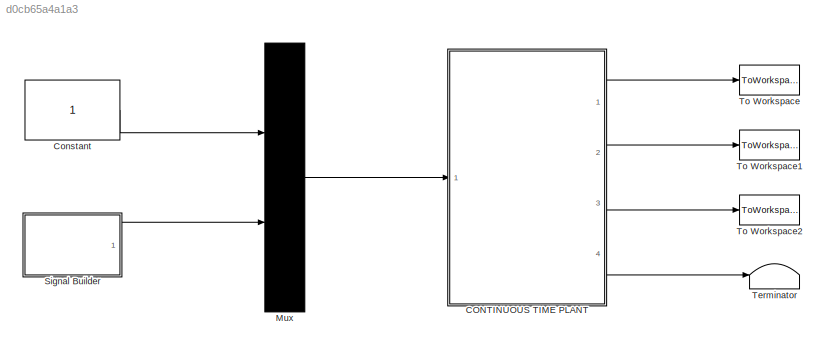
MODEL slx_d0cb65a4a1a3
KIND model
CONFIG AbsTol = auto
CONFIG EnableMultiTasking = off
CONFIG FixedStep = auto
CONFIG MaxStep = MaxStep
CONFIG MinStep = auto
CONFIG RelTol = RelTol
CONFIG SampleTimeConstraint = Unconstrained
CONFIG Solver = VariableStepAuto
CONFIG SolverName = VariableStepAuto
CONFIG StartTime = 0.0
CONFIG StopTime = T
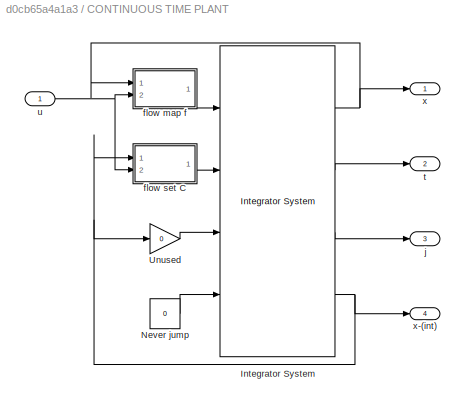
BLOCK [SubSystem] CONTINUOUS TIME PLANT
  CopyFcn = set_param(gcb,'LinkStatus','none'),                                      \nset_param(gcs, 'MaxStep', 'MaxStep', 'RelTol', 'RelTol','StopTime', 'T')
  LoadFcn = set_param(gcb,'LinkStatus','none')
  Ports = [1, 4]
  RequestExecContextInheritance = off
BLOCK [Reference] CONTINUOUS TIME PLANT/Integrator System  REF=HyEQ_Library/Other/Integrator System
  Ports = [4, 4]
  Priority = 2
  SourceBlock = HyEQ_Library/Other/Integrator System
  SourceProductName = Hybrid Equations Toolbox
  SourceType = Hybrid Integrator
BLOCK [Constant] CONTINUOUS TIME PLANT/Never jump
  Value = 0
BLOCK [Gain] CONTINUOUS TIME PLANT/Unused
  Gain = 0
  OutDataTypeStr = Inherit: Inherit via internal rule
  ParamDataTypeStr = Inherit: Inherit via internal rule
  SaturateOnIntegerOverflow = off
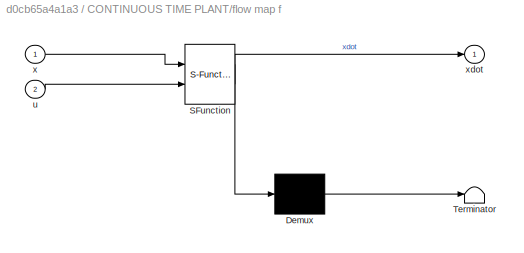
BLOCK [SubSystem] CONTINUOUS TIME PLANT/flow map f
  ErrorFcn = Stateflow.Translate.translate
  PermitHierarchicalResolution = ExplicitOnly
  Ports = [2, 1]
  RequestExecContextInheritance = off
  SFBlockType = MATLAB Function
  TreatAsAtomicUnit = on
BLOCK [Demux] CONTINUOUS TIME PLANT/flow map f/ Demux 
  Outputs = 1
  Ports = [1, 1]
BLOCK [S-Function] CONTINUOUS TIME PLANT/flow map f/ SFunction 
  EnableBusSupport = on
  FunctionName = sf_sfun
  PortCounts = [2 2]
  Ports = [2, 2]
  SFcnIsStateOwnerBlock = off
  SFunctionDeploymentMode = off
  Tag = Stateflow S-Function ContinuousTimeGroundVehicle 21
BLOCK [Terminator] CONTINUOUS TIME PLANT/flow map f/ Terminator 
BLOCK [Inport] CONTINUOUS TIME PLANT/flow map f/u
  IconDisplay = Port number
  Port = 2
BLOCK [Inport] CONTINUOUS TIME PLANT/flow map f/x
  IconDisplay = Port number
BLOCK [Outport] CONTINUOUS TIME PLANT/flow map f/xdot
  IconDisplay = Port number
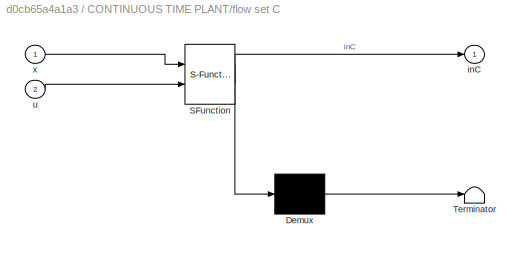
BLOCK [SubSystem] CONTINUOUS TIME PLANT/flow set C
  ErrorFcn = Stateflow.Translate.translate
  PermitHierarchicalResolution = ExplicitOnly
  Ports = [2, 1]
  RequestExecContextInheritance = off
  SFBlockType = MATLAB Function
  TreatAsAtomicUnit = on
BLOCK [Demux] CONTINUOUS TIME PLANT/flow set C/ Demux 
  Outputs = 1
  Ports = [1, 1]
BLOCK [S-Function] CONTINUOUS TIME PLANT/flow set C/ SFunction 
  EnableBusSupport = on
  FunctionName = sf_sfun
  PortCounts = [2 2]
  Ports = [2, 2]
  SFcnIsStateOwnerBlock = off
  SFunctionDeploymentMode = off
  Tag = Stateflow S-Function ContinuousTimeGroundVehicle 22
BLOCK [Terminator] CONTINUOUS TIME PLANT/flow set C/ Terminator 
BLOCK [Outport] CONTINUOUS TIME PLANT/flow set C/inC
  IconDisplay = Port number
BLOCK [Inport] CONTINUOUS TIME PLANT/flow set C/u
  IconDisplay = Port number
  Port = 2
BLOCK [Inport] CONTINUOUS TIME PLANT/flow set C/x
  IconDisplay = Port number
BLOCK [Outport] CONTINUOUS TIME PLANT/j
  IconDisplay = Port number
  Port = 3
  PortDimensions = 1
BLOCK [Outport] CONTINUOUS TIME PLANT/t
  IconDisplay = Port number
  Port = 2
  PortDimensions = 1
BLOCK [Inport] CONTINUOUS TIME PLANT/u
  IconDisplay = Port number
  PortDimensions = input_dim
BLOCK [Outport] CONTINUOUS TIME PLANT/x
  IconDisplay = Port number
  PortDimensions = state_dim
BLOCK [Outport] CONTINUOUS TIME PLANT/x-(int)
  IconDisplay = Port number
  Port = 4
  PortDimensions = state_dim
BLOCK [Constant] Constant
BLOCK [Mux] Mux
  DisplayOption = bar
  Inputs = 2
  Ports = [2, 1]
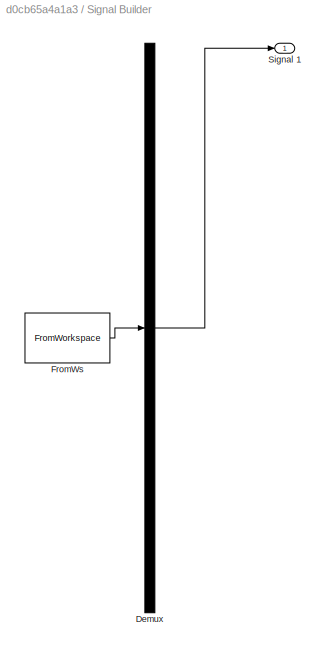
BLOCK [SubSystem] Signal Builder
  ClipboardFcn = sigbuilder_block('clipboard');
  CloseFcn = sigbuilder_block('close');
  ContinueFcn = sigbuilder_block('continue');
  CopyFcn = sigbuilder_block('copy');
  DeleteFcn = sigbuilder_block('delete');
  LoadFcn = sigbuilder_block('load');
  MaskHideContents = on
  ModelCloseFcn = sigbuilder_block('modelClose');
  NameChangeFcn = sigbuilder_block('namechange');
  OpenFcn = sigbuilder_block('open',[261 105.75 550.5 359.25 ]);
  PauseFcn = sigbuilder_block('pause');
  Ports = [0, 1]
  PreSaveFcn = sigbuilder_block('preSave');
  RequestExecContextInheritance = off
  StartFcn = sigbuilder_block('start');
  StopFcn = sigbuilder_block('stop');
  Tag = STV Subsys
BLOCK [Demux] Signal Builder/Demux
  Outputs = 1
  Ports = [1, 1]
  Tag = STV Demux
BLOCK [FromWorkspace] Signal Builder/FromWs
  SampleTime = 0
  Tag = STV FromWs
  VariableName = tuvar
  ZeroCross = on
BLOCK [Outport] Signal Builder/Signal 1
  IconDisplay = Port number
  Tag = STV Outport
BLOCK [Terminator] Terminator
BLOCK [ToWorkspace] To Workspace
  FixptAsFi = on
  MaxDataPoints = inf
  Ports = [1]
  SampleTime = -1
  VariableName = x
BLOCK [ToWorkspace] To Workspace1
  FixptAsFi = on
  MaxDataPoints = inf
  Ports = [1]
  SampleTime = -1
  VariableName = t
BLOCK [ToWorkspace] To Workspace2
  FixptAsFi = on
  MaxDataPoints = inf
  Ports = [1]
  SampleTime = -1
  VariableName = j
NET CONTINUOUS TIME PLANT/Integrator System:1 -> CONTINUOUS TIME PLANT/flow map f:1, CONTINUOUS TIME PLANT/x:1
LINE CONTINUOUS TIME PLANT/Integrator System:2 -> CONTINUOUS TIME PLANT/t:1
LINE CONTINUOUS TIME PLANT/Integrator System:3 -> CONTINUOUS TIME PLANT/j:1
NET CONTINUOUS TIME PLANT/Integrator System:4 -> CONTINUOUS TIME PLANT/Unused:1, CONTINUOUS TIME PLANT/flow set C:1, CONTINUOUS TIME PLANT/x-(int):1
LINE CONTINUOUS TIME PLANT/Never jump:1 -> CONTINUOUS TIME PLANT/Integrator System:4
LINE CONTINUOUS TIME PLANT/Unused:1 -> CONTINUOUS TIME PLANT/Integrator System:3
LINE CONTINUOUS TIME PLANT/flow map f:1 -> CONTINUOUS TIME PLANT/Integrator System:1
LINE CONTINUOUS TIME PLANT/flow set C:1 -> CONTINUOUS TIME PLANT/Integrator System:2
NET CONTINUOUS TIME PLANT/u:1 -> CONTINUOUS TIME PLANT/flow map f:2, CONTINUOUS TIME PLANT/flow set C:2
LINE CONTINUOUS TIME PLANT:1 -> To Workspace:1
LINE CONTINUOUS TIME PLANT:2 -> To Workspace1:1
LINE CONTINUOUS TIME PLANT:3 -> To Workspace2:1
LINE CONTINUOUS TIME PLANT:4 -> Terminator:1
LINE Constant:1 -> Mux:1
LINE Mux:1 -> CONTINUOUS TIME PLANT:1
LINE Signal Builder:1 -> Mux:2
note: NET lines group one-source signal fan-out (src -> all destinations, sorted); 1:1 wires keep LINE
CHART CONTINUOUS TIME PLANT/flow map f states=1 transitions=1
  STATE_LABEL 'eML_blk_kernel()'
  STATE_LABEL 'SCRIPT:\nfunction xdot = f(x, u)\n% State Vector\nx1=x(1);\nx2=x(2);\nx3=x(3);\n\n%Input Vector\nv1=u(1);\nv2=u(2);\n\n%Differential Equation\nx1dot=v1*sin(x3);\nx2dot=v1*cos(x3);\nx3dot=v2;\n\n%Collect Differential Equation\nxdot =[x1dot;x2dot;x3dot];\nend'
CHART CONTINUOUS TIME PLANT/flow set C states=1 transitions=1
  STATE_LABEL 'eML_blk_kernel()'
  STATE_LABEL 'SCRIPT:\nfunction inC = C(x, u)\n    % Define the flow set indicator function for the continuous process here.\n    inC = 1;\nend'
